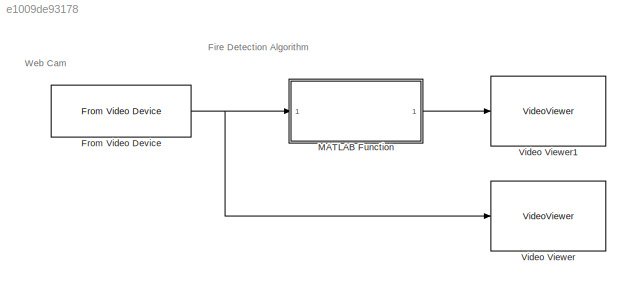
MODEL slx_e1009de93178
KIND model
CONFIG AbsTol = auto
CONFIG EnableMultiTasking = off
CONFIG FixedStep = auto
CONFIG MaxStep = auto
CONFIG MinStep = auto
CONFIG RelTol = 1e-3
CONFIG SampleTimeConstraint = Unconstrained
CONFIG SolverName = FixedStepAuto
CONFIG StartTime = 0.0
CONFIG StopTime = 60
BLOCK [Reference] From Video Device  REF=imaqlib/From Video Device
  SourceBlock = imaqlib/From Video Device
  SourceType = From Video Device
  UserDataPersistent = on
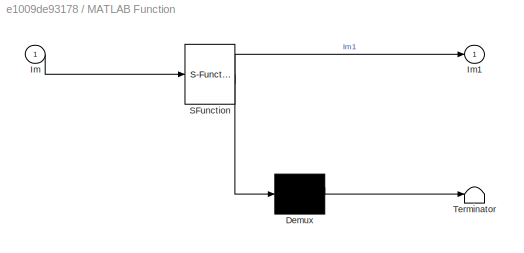
BLOCK [SubSystem] MATLAB Function
  ErrorFcn = Stateflow.Translate.translate
  PermitHierarchicalResolution = ExplicitOnly
  SFBlockType = MATLAB Function
  TreatAsAtomicUnit = on
BLOCK [Demux] MATLAB Function/ Demux 
  Outputs = 1
BLOCK [S-Function] MATLAB Function/ SFunction 
  EnableBusSupport = on
  FunctionName = sf_sfun
  PortCounts = [1 2]
  SFcnIsStateOwnerBlock = off
  SFunctionDeploymentMode = off
  Tag = Stateflow S-Function 2
BLOCK [Terminator] MATLAB Function/ Terminator 
BLOCK [Inport] MATLAB Function/Im
BLOCK [Outport] MATLAB Function/Im1
  VectorParamsAs1DForOutWhenUnconnected = off
BLOCK [VideoViewer] Video Viewer
  FigPos = [35.4 742.8 675.2 508.8]
  ScopeSpecificationString = vipscopes.VideoViewerScopeCfg('CurrentConfiguration', extmgr.ConfigurationSet(extmgr.Configuration('Core','General UI',true),extmgr.Configuration('Core','Source UI',true),extmgr.Configuration('Sources','WiredSimulink',true),extmgr.Configuration('Visuals','Video',true),extmgr.Configuration('Tools','Image Navigation Tools',true,'FitToView',true),extmgr.Configuration('Tools','Image Tool',true),extmgr...<+99ch>
  colormapValue = gray(256)
BLOCK [VideoViewer] Video Viewer1
  FigPos = [715.4 743.6 742.4 504.8]
  ScopeSpecificationString = vipscopes.VideoViewerScopeCfg('CurrentConfiguration', extmgr.ConfigurationSet(extmgr.Configuration('Core','General UI',true),extmgr.Configuration('Core','Source UI',true),extmgr.Configuration('Sources','WiredSimulink',true),extmgr.Configuration('Visuals','Video',true),extmgr.Configuration('Tools','Image Navigation Tools',true,'Magnification',0.82421875),extmgr.Configuration('Tools','Image Tool',tr...<+110ch>
  colormapValue = gray(256)
ANNOTATION (root): Fire Detection Algorithm
ANNOTATION (root): Web Cam
NET From Video Device:1 -> MATLAB Function:1, Video Viewer:1
LINE MATLAB Function:1 -> Video Viewer1:1
note: NET lines group one-source signal fan-out (src -> all destinations, sorted); 1:1 wires keep LINE
CHART MATLAB Function states=1 transitions=1
  STATE_LABEL 'eML_blk_kernel()'
  STATE_LABEL 'SCRIPT:\nfunction Im1 = fcn(Im)\nIm=Im.*255;\n[m,n,~]=size(Im);\nmask=zeros(m,n);\nIm_LAB = rgb2lab(Im);\nLm=mean(mean(Im_LAB(:,:,1)));\nAm=mean(mean(Im_LAB(:,:,2)));\nBm=mean(mean(Im_LAB(:,:,3)));\nR_T=230;%[115 135]\nfor i=1:m\n    for j=1:n\n        if Im(i,j,1)>=R_T\n            if Im(i,j,1)>=Im(i,j,2) && Im(i,j,2)>=Im(i,j,3)\n                if Im(i,j,2)/(Im(i,j,1)+255)>=0.25 && Im(i,j,2)/(Im(i,j,1)+255)<=...<+568ch>'
CHART  states=0 transitions=0
